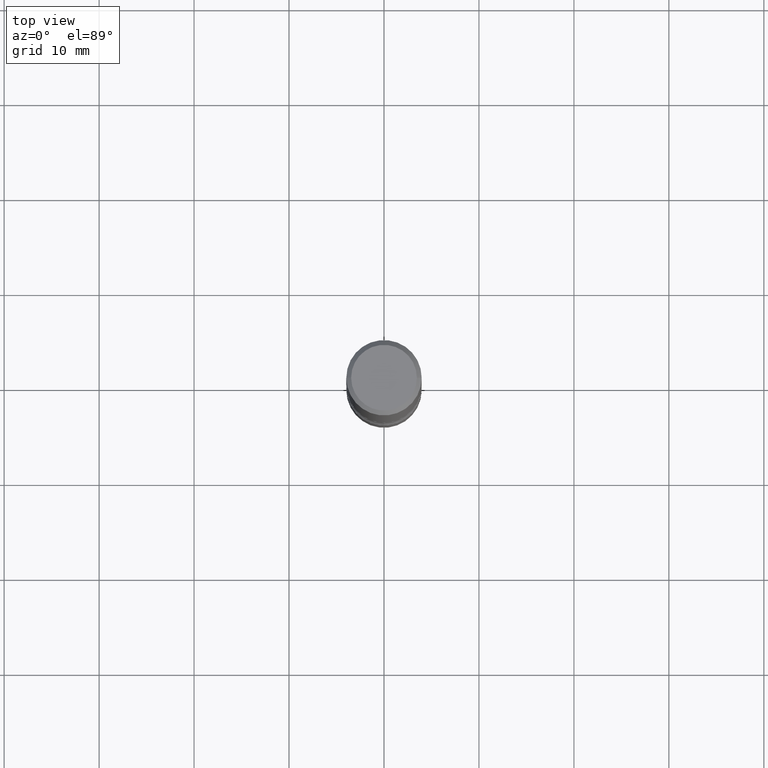
[diagram: clean part render]
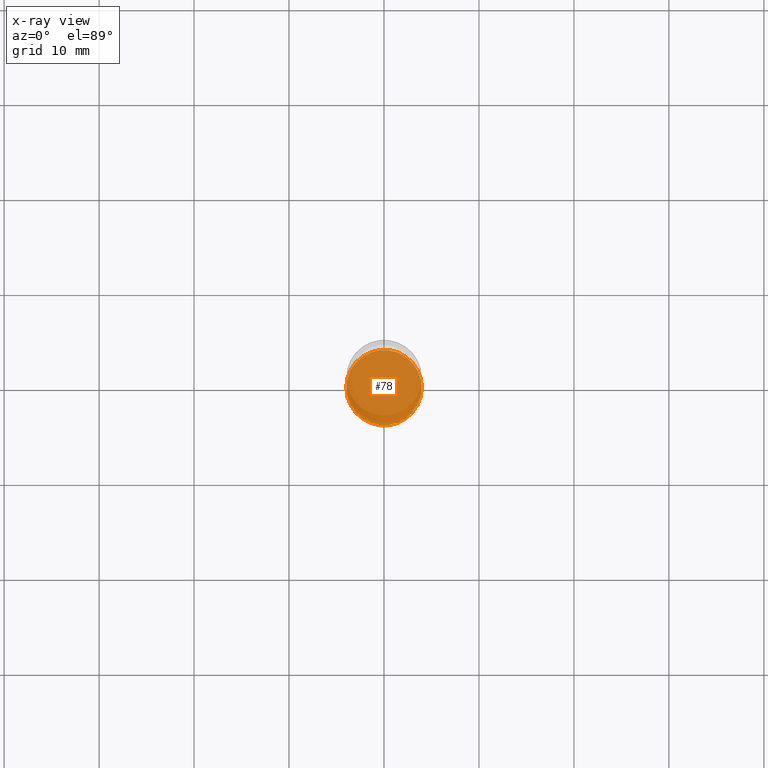
[diagram: x-ray — body ghosted, one internal face saturated and labeled with its STEP entity id]
A machine part, top view, then the same camera in x-ray: the body is ghosted and one INTERNAL B-rep face — a face not visible from any outside direction — is saturated and labeled: STEP entity #78.
In plain terms, the highlighted planar face has unit normal (0, -0, -1).
Its self-contained STEP definition (entity closure, byte-faithful):
#38 = FACE_OUTER_BOUND ( 'NONE', #262, .T. ) ;
#78 = ADVANCED_FACE ( 'NONE', ( #38 ), #417, .F. ) ;
#79 = DIRECTION ( 'NONE',  ( 2.438088387897960049E-29, -3.491481338843145188E-15, -1.000000000000000000 ) ) ;
#123 = CARTESIAN_POINT ( 'NONE',  ( 5.807988414689700538E-29, -8.292268179752471696E-15, -2.375000000000000444 ) ) ;
#160 = CIRCLE ( 'NONE', #470, 0.1562500000000001110 ) ;
#174 = DIRECTION ( 'NONE',  ( 1.000000000000000000, -6.982962677686270655E-15, 0.000000000000000000 ) ) ;
#198 = CARTESIAN_POINT ( 'NONE',  ( 0.1562500000000001110, -9.383356098140953236E-15, -2.375000000000000444 ) ) ;
#203 = DIRECTION ( 'NONE',  ( -1.000000000000000000, 6.982962677686265922E-15, -4.876176775795935793E-29 ) ) ;
#208 = CIRCLE ( 'NONE', #514, 0.1562500000000001110 ) ;
#222 = AXIS2_PLACEMENT_3D ( 'NONE', #364, #79, #203 ) ;
#262 = EDGE_LOOP ( 'NONE', ( #351, #390 ) ) ;
#296 = CARTESIAN_POINT ( 'NONE',  ( 5.807988414689700538E-29, -8.292268179752471696E-15, -2.375000000000000444 ) ) ;
#297 = VERTEX_POINT ( 'NONE', #198 ) ;
#303 = EDGE_CURVE ( 'NONE', #297, #388, #160, .T. ) ;
#351 = ORIENTED_EDGE ( 'NONE', *, *, #303, .T. ) ;
#364 = CARTESIAN_POINT ( 'NONE',  ( 5.807988414689700538E-29, -8.292268179752471696E-15, -2.375000000000000444 ) ) ;
#370 = DIRECTION ( 'NONE',  ( 1.000000000000000000, -6.982962677686270655E-15, 0.000000000000000000 ) ) ;
#378 = CARTESIAN_POINT ( 'NONE',  ( -0.1562500000000001110, -8.168388633350503326E-15, -2.375000000000000444 ) ) ;
#388 = VERTEX_POINT ( 'NONE', #378 ) ;
#390 = ORIENTED_EDGE ( 'NONE', *, *, #416, .T. ) ;
#416 = EDGE_CURVE ( 'NONE', #388, #297, #208, .T. ) ;
#417 = PLANE ( 'NONE',  #222 ) ;
#462 = DIRECTION ( 'NONE',  ( -2.445468806185136597E-29, 3.491481338843145583E-15, 1.000000000000000000 ) ) ;
#470 = AXIS2_PLACEMENT_3D ( 'NONE', #123, #541, #370 ) ;
#514 = AXIS2_PLACEMENT_3D ( 'NONE', #296, #462, #174 ) ;
#541 = DIRECTION ( 'NONE',  ( -2.445468806185136597E-29, 3.491481338843145583E-15, 1.000000000000000000 ) ) ;